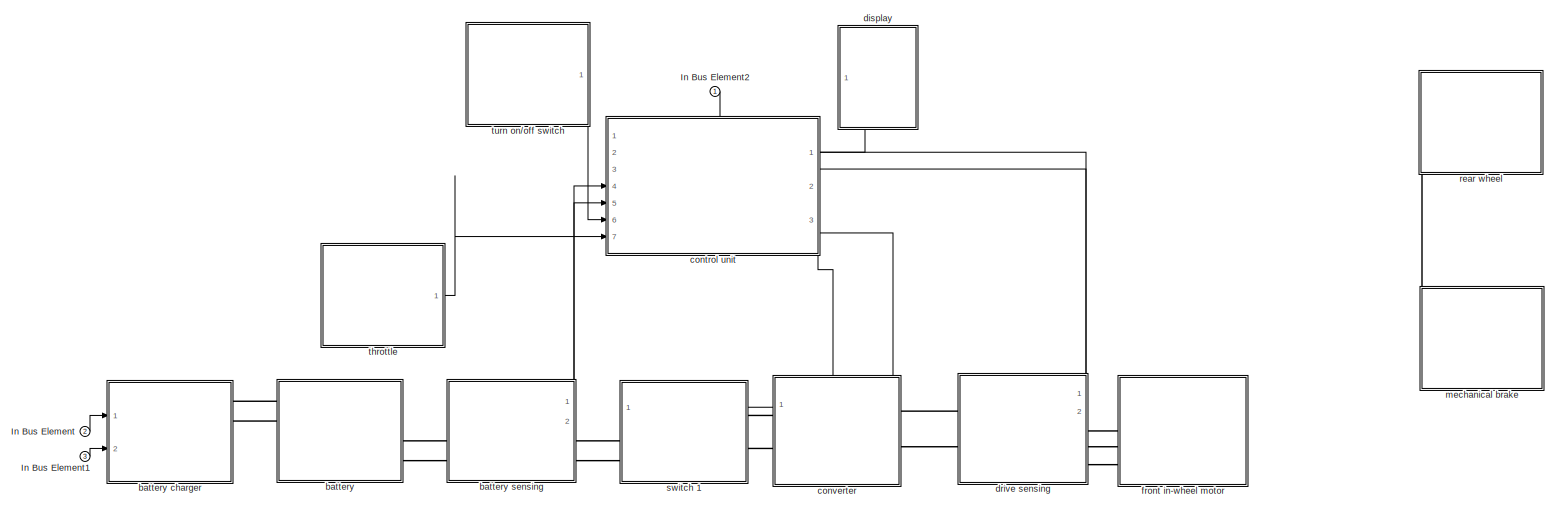
[diagram: root canvas - part 1/1, most of the canvas]
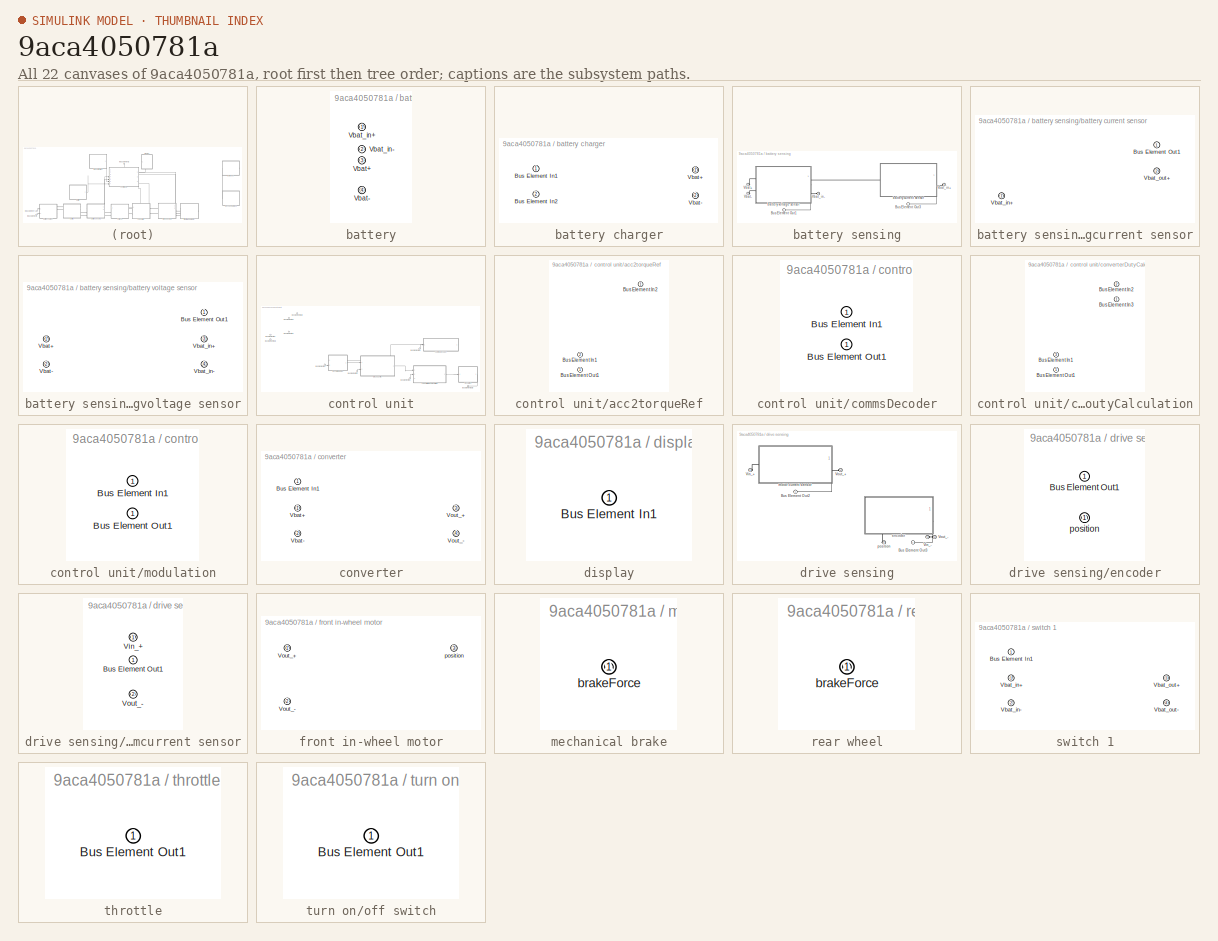
[diagram: thumbnail index - all 22 canvases of the model, root first then tree order]
MODEL slx_9aca4050781a
KIND model
CONFIG AbsTol = auto
CONFIG EnableMultiTasking = off
CONFIG FixedStep = auto
CONFIG MaxStep = auto
CONFIG MinStep = auto
CONFIG RelTol = 1e-3
CONFIG SampleTimeConstraint = Unconstrained
CONFIG SolverName = VariableStepAuto
CONFIG StartTime = 0.0
CONFIG StopTime = 10.0
BLOCK [Inport] In Bus Element
  Port = 2
BLOCK [Inport] In Bus Element1
  Port = 3
BLOCK [Inport] In Bus Element2
BLOCK [SubSystem] battery
  PortSchema = {"entries":[{"content":{"headerSize":26,"margin":15,"minimumSpacing":25,"sides":[{"content":{"connectorIds":["RConn1","RConn2"]},"type":"ConnectorPlacement.EquallySpacedRectSide","uuid":"ee500202-9322-4fb0-a7cb-dad4ec0e2ec3"},{"content":{"connectorIds":["RConn3","RConn4"],"side":"RIGHT"},"type":"ConnectorPlacement.EquallySpacedRectSide","uuid":"837fb5dd-499e-46ad-8a25-662d532e1a52"},{"content":{"c...<+455ch>
  Ports = [0, 0, 0, 0, 0, 0, 4]
  RequestExecContextInheritance = off
BLOCK [SubSystem] battery charger
  PortSchema = {"entries":[{"content":{"headerSize":26,"margin":15,"minimumSpacing":25,"sides":[{"content":{"connectorIds":["In1","In2"]},"type":"ConnectorPlacement.EquallySpacedRectSide","uuid":"77baa894-24de-420f-bb05-d29ca1eca7c3"},{"content":{"connectorIds":["RConn1","RConn2"],"side":"RIGHT"},"type":"ConnectorPlacement.EquallySpacedRectSide","uuid":"fcd1216d-879c-477b-b249-00119a9fcd22"},{"content":{"connect...<+305ch>
  Ports = [2, 0, 0, 0, 0, 0, 2]
  RequestExecContextInheritance = off
BLOCK [Inport] battery charger/Bus Element In1
BLOCK [Inport] battery charger/Bus Element In2
  Port = 2
BLOCK [PMIOPort] battery charger/Vbat+
  Side = Right
BLOCK [PMIOPort] battery charger/Vbat-
  Port = 2
  Side = Right
BLOCK [SubSystem] battery sensing
  PortSchema = {"entries":[{"content":{"headerSize":26,"margin":15,"minimumSpacing":25,"sides":[{"content":{"connectorIds":["LConn1","LConn2"]},"type":"ConnectorPlacement.EquallySpacedRectSide","uuid":"77baa894-24de-420f-bb05-d29ca1eca7c3"},{"content":{"connectorIds":["RConn1","RConn2"],"side":"RIGHT"},"type":"ConnectorPlacement.EquallySpacedRectSide","uuid":"fcd1216d-879c-477b-b249-00119a9fcd22"},{"content":{"c...<+468ch>
  Ports = [0, 2, 0, 0, 0, 2, 2]
  RequestExecContextInheritance = off
BLOCK [Outport] battery sensing/Bus Element Out1
  Port = 2
BLOCK [Outport] battery sensing/Bus Element Out3
BLOCK [PMIOPort] battery sensing/Vbat+
  Side = Left
BLOCK [PMIOPort] battery sensing/Vbat-
  Port = 2
  Side = Left
BLOCK [PMIOPort] battery sensing/Vbat_in+
  Port = 3
  Side = Right
BLOCK [PMIOPort] battery sensing/Vbat_in-
  Port = 4
  Side = Right
BLOCK [SubSystem] battery sensing/battery current sensor
  PortSchema = {"entries":[{"content":{"headerSize":26,"margin":15,"minimumSpacing":25,"sides":[{"content":{"connectorIds":["LConn1"]},"type":"ConnectorPlacement.EquallySpacedRectSide","uuid":"77baa894-24de-420f-bb05-d29ca1eca7c3"},{"content":{"connectorIds":["RConn1"],"side":"RIGHT"},"type":"ConnectorPlacement.EquallySpacedRectSide","uuid":"fcd1216d-879c-477b-b249-00119a9fcd22"},{"content":{"connectorIds":[],"s...<+443ch>
  Ports = [0, 1, 0, 0, 0, 1, 1]
  RequestExecContextInheritance = off
BLOCK [Outport] battery sensing/battery current sensor/Bus Element Out1
BLOCK [PMIOPort] battery sensing/battery current sensor/Vbat_in+
  Side = Left
BLOCK [PMIOPort] battery sensing/battery current sensor/Vbat_out+
  Port = 2
  Side = Right
BLOCK [SubSystem] battery sensing/battery voltage sensor
  PortSchema = {"entries":[{"content":{"headerSize":26,"margin":15,"minimumSpacing":25,"sides":[{"content":{"connectorIds":["LConn1","LConn2"]},"type":"ConnectorPlacement.EquallySpacedRectSide","uuid":"77baa894-24de-420f-bb05-d29ca1eca7c3"},{"content":{"connectorIds":["RConn1","RConn2"],"side":"RIGHT"},"type":"ConnectorPlacement.EquallySpacedRectSide","uuid":"fcd1216d-879c-477b-b249-00119a9fcd22"},{"content":{"c...<+461ch>
  Ports = [0, 1, 0, 0, 0, 2, 2]
  RequestExecContextInheritance = off
BLOCK [Outport] battery sensing/battery voltage sensor/Bus Element Out1
BLOCK [PMIOPort] battery sensing/battery voltage sensor/Vbat+
  Side = Left
BLOCK [PMIOPort] battery sensing/battery voltage sensor/Vbat-
  Port = 2
  Side = Left
BLOCK [PMIOPort] battery sensing/battery voltage sensor/Vbat_in+
  Port = 3
  Side = Right
BLOCK [PMIOPort] battery sensing/battery voltage sensor/Vbat_in-
  Port = 4
  Side = Right
BLOCK [PMIOPort] battery/Vbat+
  Port = 3
  Side = Right
BLOCK [PMIOPort] battery/Vbat-
  Port = 4
  Side = Right
BLOCK [PMIOPort] battery/Vbat_in+
  Side = Right
BLOCK [PMIOPort] battery/Vbat_in-
  Port = 2
  Side = Right
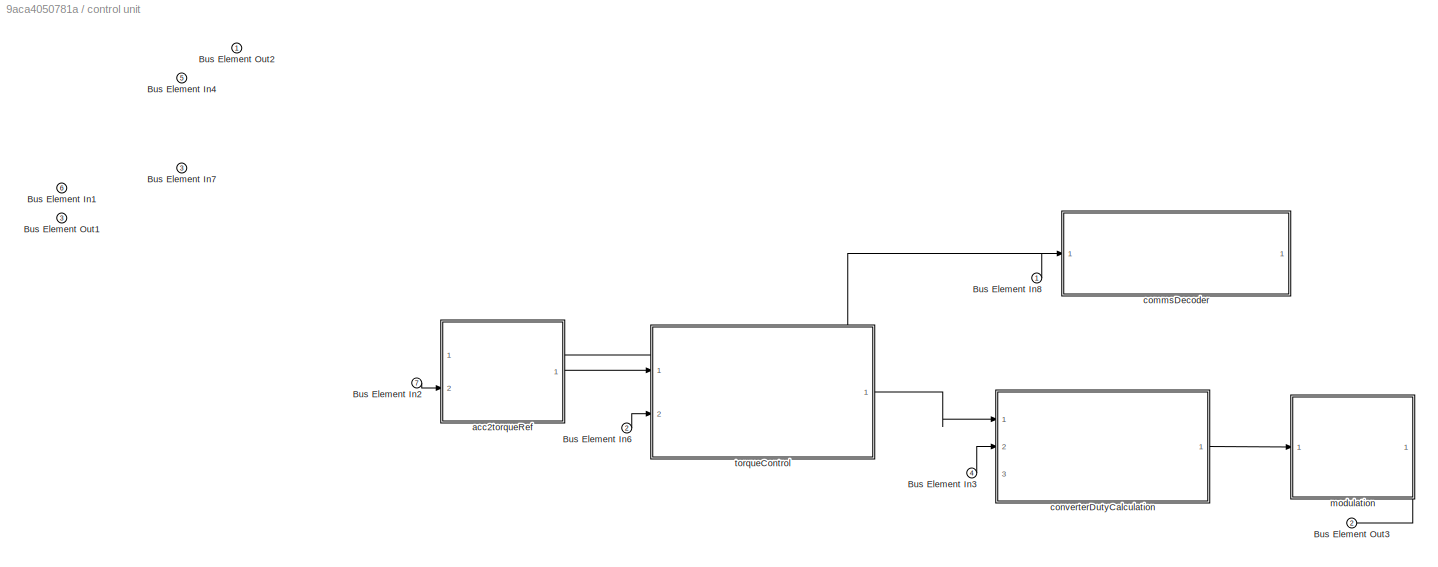
BLOCK [SubSystem] control unit
  PortSchema = {"entries":[{"content":{"headerSize":26,"margin":15,"minimumSpacing":25,"sides":[{"content":{"connectorIds":["In6","In7","In4","In5"]},"type":"ConnectorPlacement.EquallySpacedRectSide","uuid":"77baa894-24de-420f-bb05-d29ca1eca7c3"},{"content":{"connectorIds":["Out1","In2","In3"],"side":"RIGHT"},"type":"ConnectorPlacement.EquallySpacedRectSide","uuid":"fcd1216d-879c-477b-b249-00119a9fcd22"},{"conte...<+480ch>
  Ports = [7, 3]
  RequestExecContextInheritance = off
BLOCK [Inport] control unit/Bus Element In1
  Port = 6
BLOCK [Inport] control unit/Bus Element In2
  Port = 7
BLOCK [Inport] control unit/Bus Element In3
  Port = 4
BLOCK [Inport] control unit/Bus Element In4
  Port = 5
BLOCK [Inport] control unit/Bus Element In6
  Port = 2
BLOCK [Inport] control unit/Bus Element In7
  Port = 3
BLOCK [Inport] control unit/Bus Element In8
BLOCK [Outport] control unit/Bus Element Out1
  Port = 3
BLOCK [Outport] control unit/Bus Element Out2
BLOCK [Outport] control unit/Bus Element Out3
  Port = 2
BLOCK [SubSystem] control unit/acc2torqueRef
  PortSchema = {"entries":[{"content":{"headerSize":26,"margin":15,"minimumSpacing":25,"sides":[{"content":{"connectorIds":["In2"]},"type":"ConnectorPlacement.EquallySpacedRectSide","uuid":"c417387f-860e-41c8-9911-3c50efe17f0f"},{"content":{"connectorIds":["In1","Out1"],"side":"RIGHT"},"type":"ConnectorPlacement.EquallySpacedRectSide","uuid":"91196307-25cf-4e7f-8b62-2e4af4ce1698"},{"content":{"connectorIds":[],"...<+438ch>
  Ports = [2, 1]
  RequestExecContextInheritance = off
BLOCK [Inport] control unit/acc2torqueRef/Bus Element In1
  Port = 2
BLOCK [Inport] control unit/acc2torqueRef/Bus Element In2
BLOCK [Outport] control unit/acc2torqueRef/Bus Element Out1
BLOCK [SubSystem] control unit/commsDecoder
  PortSchema = {"entries":[{"content":{"headerSize":26,"margin":15,"minimumSpacing":25,"sides":[{"content":{"connectorIds":["Out1","In1"]},"type":"ConnectorPlacement.EquallySpacedRectSide","uuid":"77baa894-24de-420f-bb05-d29ca1eca7c3"},{"content":{"connectorIds":[],"side":"RIGHT"},"type":"ConnectorPlacement.EquallySpacedRectSide","uuid":"fcd1216d-879c-477b-b249-00119a9fcd22"},{"content":{"connectorIds":[],"side"...<+289ch>
  Ports = [1, 1]
  RequestExecContextInheritance = off
BLOCK [Inport] control unit/commsDecoder/Bus Element In1
BLOCK [Outport] control unit/commsDecoder/Bus Element Out1
BLOCK [SubSystem] control unit/converterDutyCalculation
  PortSchema = {"entries":[{"content":{"headerSize":26,"margin":15,"minimumSpacing":25,"sides":[{"content":{"connectorIds":["In1","In2"]},"type":"ConnectorPlacement.EquallySpacedRectSide","uuid":"c417387f-860e-41c8-9911-3c50efe17f0f"},{"content":{"connectorIds":["Out1"],"side":"RIGHT"},"type":"ConnectorPlacement.EquallySpacedRectSide","uuid":"91196307-25cf-4e7f-8b62-2e4af4ce1698"},{"content":{"connectorIds":["In...<+443ch>
  Ports = [3, 1]
  RequestExecContextInheritance = off
BLOCK [Inport] control unit/converterDutyCalculation/Bus Element In1
  Port = 3
BLOCK [Inport] control unit/converterDutyCalculation/Bus Element In2
  Port = 2
BLOCK [Inport] control unit/converterDutyCalculation/Bus Element In3
BLOCK [Outport] control unit/converterDutyCalculation/Bus Element Out1
BLOCK [SubSystem] control unit/modulation
  PortSchema = {"entries":[{"content":{"headerSize":26,"margin":15,"minimumSpacing":25,"sides":[{"content":{"connectorIds":["In1"]},"type":"ConnectorPlacement.EquallySpacedRectSide","uuid":"c417387f-860e-41c8-9911-3c50efe17f0f"},{"content":{"connectorIds":[],"side":"RIGHT"},"type":"ConnectorPlacement.EquallySpacedRectSide","uuid":"91196307-25cf-4e7f-8b62-2e4af4ce1698"},{"content":{"connectorIds":[],"side":"TOP"}...<+432ch>
  Ports = [1, 1]
  RequestExecContextInheritance = off
BLOCK [Inport] control unit/modulation/Bus Element In1
BLOCK [Outport] control unit/modulation/Bus Element Out1
BLOCK [ModelReference] control unit/torqueControl
  ModelNameDialog = torqueControl
  ModelReferenceVersion = 1.4
  PortSchema = {"entries":[{"content":{"headerSize":38,"margin":15,"minimumSpacing":25,"sides":[{"content":{"connectorIds":["In1","In2"]},"type":"ConnectorPlacement.EquallySpacedRectSide","uuid":"c417387f-860e-41c8-9911-3c50efe17f0f"},{"content":{"connectorIds":["Out1"],"side":"RIGHT"},"type":"ConnectorPlacement.EquallySpacedRectSide","uuid":"91196307-25cf-4e7f-8b62-2e4af4ce1698"},{"content":{"connectorIds":[],"...<+438ch>
  Ports = [2, 1]
BLOCK [SubSystem] converter
  PortSchema = {"entries":[{"content":{"headerSize":26,"margin":15,"minimumSpacing":25,"sides":[{"content":{"connectorIds":["LConn1","LConn2"]},"type":"ConnectorPlacement.EquallySpacedRectSide","uuid":"77baa894-24de-420f-bb05-d29ca1eca7c3"},{"content":{"connectorIds":["RConn1","RConn2"],"side":"RIGHT"},"type":"ConnectorPlacement.EquallySpacedRectSide","uuid":"fcd1216d-879c-477b-b249-00119a9fcd22"},{"content":{"c...<+316ch>
  Ports = [1, 0, 0, 0, 0, 2, 2]
  RequestExecContextInheritance = off
BLOCK [Inport] converter/Bus Element In1
BLOCK [PMIOPort] converter/Vbat+
  Side = Left
BLOCK [PMIOPort] converter/Vbat-
  Port = 2
  Side = Left
BLOCK [PMIOPort] converter/Vout_+
  Port = 3
  Side = Right
BLOCK [PMIOPort] converter/Vout_-
  Port = 4
  Side = Right
BLOCK [SubSystem] display
  PortSchema = {"entries":[{"content":{"headerSize":26,"margin":15,"minimumSpacing":25,"sides":[{"content":{"connectorIds":[]},"type":"ConnectorPlacement.EquallySpacedRectSide","uuid":"77baa894-24de-420f-bb05-d29ca1eca7c3"},{"content":{"connectorIds":[],"side":"RIGHT"},"type":"ConnectorPlacement.EquallySpacedRectSide","uuid":"fcd1216d-879c-477b-b249-00119a9fcd22"},{"content":{"connectorIds":[],"side":"TOP"},"typ...<+426ch>
  Ports = [1]
  RequestExecContextInheritance = off
BLOCK [Inport] display/Bus Element In1
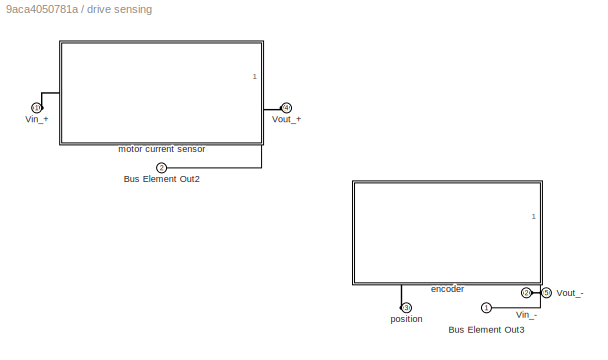
BLOCK [SubSystem] drive sensing
  PortSchema = {"entries":[{"content":{"headerSize":26,"margin":15,"minimumSpacing":25,"sides":[{"content":{"connectorIds":["LConn1","LConn2"]},"type":"ConnectorPlacement.EquallySpacedRectSide","uuid":"77baa894-24de-420f-bb05-d29ca1eca7c3"},{"content":{"connectorIds":["RConn2","RConn3"],"side":"RIGHT"},"type":"ConnectorPlacement.EquallySpacedRectSide","uuid":"fcd1216d-879c-477b-b249-00119a9fcd22"},{"content":{"c...<+476ch>
  Ports = [0, 2, 0, 0, 0, 2, 3]
  RequestExecContextInheritance = off
BLOCK [Outport] drive sensing/Bus Element Out2
  Port = 2
BLOCK [Outport] drive sensing/Bus Element Out3
BLOCK [PMIOPort] drive sensing/Vin_+
  Side = Left
BLOCK [PMIOPort] drive sensing/Vin_-
  Port = 2
  Side = Left
BLOCK [PMIOPort] drive sensing/Vout_+
  Port = 4
  Side = Right
BLOCK [PMIOPort] drive sensing/Vout_-
  Port = 5
  Side = Right
BLOCK [SubSystem] drive sensing/encoder
  PortSchema = {"entries":[{"content":{"headerSize":26,"margin":15,"minimumSpacing":25,"sides":[{"content":{"connectorIds":[]},"type":"ConnectorPlacement.EquallySpacedRectSide","uuid":"77baa894-24de-420f-bb05-d29ca1eca7c3"},{"content":{"connectorIds":[],"side":"RIGHT"},"type":"ConnectorPlacement.EquallySpacedRectSide","uuid":"fcd1216d-879c-477b-b249-00119a9fcd22"},{"content":{"connectorIds":[],"side":"TOP"},"typ...<+436ch>
  Ports = [0, 1, 0, 0, 0, 0, 1]
  RequestExecContextInheritance = off
BLOCK [Outport] drive sensing/encoder/Bus Element Out1
BLOCK [PMIOPort] drive sensing/encoder/position
  Side = Right
BLOCK [SubSystem] drive sensing/motor current sensor
  PortSchema = {"entries":[{"content":{"headerSize":26,"margin":15,"minimumSpacing":25,"sides":[{"content":{"connectorIds":["LConn1"]},"type":"ConnectorPlacement.EquallySpacedRectSide","uuid":"77baa894-24de-420f-bb05-d29ca1eca7c3"},{"content":{"connectorIds":["RConn1"],"side":"RIGHT"},"type":"ConnectorPlacement.EquallySpacedRectSide","uuid":"fcd1216d-879c-477b-b249-00119a9fcd22"},{"content":{"connectorIds":[],"s...<+443ch>
  Ports = [0, 1, 0, 0, 0, 1, 1]
  RequestExecContextInheritance = off
BLOCK [Outport] drive sensing/motor current sensor/Bus Element Out1
BLOCK [PMIOPort] drive sensing/motor current sensor/Vin_+
  Side = Left
BLOCK [PMIOPort] drive sensing/motor current sensor/Vout_-
  Port = 2
  Side = Right
BLOCK [PMIOPort] drive sensing/position
  Port = 3
  Side = Right
BLOCK [SubSystem] front in-wheel motor
  PortSchema = {"entries":[{"content":{"headerSize":26,"margin":15,"minimumSpacing":25,"sides":[{"content":{"connectorIds":["LConn1","LConn2"]},"type":"ConnectorPlacement.EquallySpacedRectSide","uuid":"77baa894-24de-420f-bb05-d29ca1eca7c3"},{"content":{"connectorIds":[],"side":"RIGHT"},"type":"ConnectorPlacement.EquallySpacedRectSide","uuid":"fcd1216d-879c-477b-b249-00119a9fcd22"},{"content":{"connectorIds":[],"...<+446ch>
  Ports = [0, 0, 0, 0, 0, 2, 1]
  RequestExecContextInheritance = off
BLOCK [PMIOPort] front in-wheel motor/Vout_+
  Side = Left
BLOCK [PMIOPort] front in-wheel motor/Vout_-
  Port = 2
  Side = Left
BLOCK [PMIOPort] front in-wheel motor/position
  Port = 3
  Side = Right
BLOCK [SubSystem] mechanical brake
  PortSchema = {"entries":[{"content":{"headerSize":26,"margin":15,"minimumSpacing":25,"sides":[{"content":{"connectorIds":[]},"type":"ConnectorPlacement.EquallySpacedRectSide","uuid":"77baa894-24de-420f-bb05-d29ca1eca7c3"},{"content":{"connectorIds":[],"side":"RIGHT"},"type":"ConnectorPlacement.EquallySpacedRectSide","uuid":"fcd1216d-879c-477b-b249-00119a9fcd22"},{"content":{"connectorIds":["LConn1"],"side":"TO...<+285ch>
  Ports = [0, 0, 0, 0, 0, 1]
  RequestExecContextInheritance = off
BLOCK [PMIOPort] mechanical brake/brakeForce
  Side = Left
BLOCK [SubSystem] rear wheel
  PortSchema = {"entries":[{"content":{"headerSize":26,"margin":15,"minimumSpacing":25,"sides":[{"content":{"connectorIds":[]},"type":"ConnectorPlacement.EquallySpacedRectSide","uuid":"77baa894-24de-420f-bb05-d29ca1eca7c3"},{"content":{"connectorIds":[],"side":"RIGHT"},"type":"ConnectorPlacement.EquallySpacedRectSide","uuid":"fcd1216d-879c-477b-b249-00119a9fcd22"},{"content":{"connectorIds":[],"side":"TOP"},"typ...<+429ch>
  Ports = [0, 0, 0, 0, 0, 0, 1]
  RequestExecContextInheritance = off
BLOCK [PMIOPort] rear wheel/brakeForce
  Side = Right
BLOCK [SubSystem] switch 1
  PortSchema = {"entries":[{"content":{"headerSize":26,"margin":15,"minimumSpacing":25,"sides":[{"content":{"connectorIds":["LConn1","LConn2"]},"type":"ConnectorPlacement.EquallySpacedRectSide","uuid":"77baa894-24de-420f-bb05-d29ca1eca7c3"},{"content":{"connectorIds":["RConn1","RConn2"],"side":"RIGHT"},"type":"ConnectorPlacement.EquallySpacedRectSide","uuid":"fcd1216d-879c-477b-b249-00119a9fcd22"},{"content":{"c...<+316ch>
  Ports = [1, 0, 0, 0, 0, 2, 2]
  RequestExecContextInheritance = off
BLOCK [Inport] switch 1/Bus Element In1
BLOCK [PMIOPort] switch 1/Vbat_in+
  Side = Left
BLOCK [PMIOPort] switch 1/Vbat_in-
  Port = 2
  Side = Left
BLOCK [PMIOPort] switch 1/Vbat_out+
  Port = 3
  Side = Right
BLOCK [PMIOPort] switch 1/Vbat_out-
  Port = 4
  Side = Right
BLOCK [SubSystem] throttle
  PortSchema = {"entries":[{"content":{"headerSize":26,"margin":15,"minimumSpacing":25,"sides":[{"content":{"connectorIds":[]},"type":"ConnectorPlacement.EquallySpacedRectSide","uuid":"77baa894-24de-420f-bb05-d29ca1eca7c3"},{"content":{"connectorIds":["Out1"],"side":"RIGHT"},"type":"ConnectorPlacement.EquallySpacedRectSide","uuid":"fcd1216d-879c-477b-b249-00119a9fcd22"},{"content":{"connectorIds":[],"side":"TOP"...<+283ch>
  Ports = [0, 1]
  RequestExecContextInheritance = off
BLOCK [Outport] throttle/Bus Element Out1
BLOCK [SubSystem] turn on//off switch
  PortSchema = {"entries":[{"content":{"headerSize":26,"margin":15,"minimumSpacing":25,"sides":[{"content":{"connectorIds":[]},"type":"ConnectorPlacement.EquallySpacedRectSide","uuid":"77baa894-24de-420f-bb05-d29ca1eca7c3"},{"content":{"connectorIds":[],"side":"RIGHT"},"type":"ConnectorPlacement.EquallySpacedRectSide","uuid":"fcd1216d-879c-477b-b249-00119a9fcd22"},{"content":{"connectorIds":[],"side":"TOP"},"typ...<+427ch>
  Ports = [0, 1]
  RequestExecContextInheritance = off
BLOCK [Outport] turn on//off switch/Bus Element Out1
LINE In Bus Element1:1 -> battery charger:2
LINE In Bus Element2:1 -> control unit:1
LINE In Bus Element:1 -> battery charger:1
LINE battery sensing/battery current sensor:1 -> battery sensing/Bus Element Out3:1
LINE battery sensing/battery voltage sensor:1 -> battery sensing/Bus Element Out1:1
LINE battery sensing:1 -> control unit:5
LINE battery sensing:2 -> control unit:4
LINE control unit/Bus Element In2:1 -> control unit/acc2torqueRef:2
LINE control unit/Bus Element In3:1 -> control unit/converterDutyCalculation:2
LINE control unit/Bus Element In6:1 -> control unit/torqueControl:2
LINE control unit/Bus Element In8:1 -> control unit/commsDecoder:1
LINE control unit/acc2torqueRef:1 -> control unit/torqueControl:1
LINE control unit/commsDecoder:1 -> control unit/acc2torqueRef:1
LINE control unit/converterDutyCalculation:1 -> control unit/modulation:1
LINE control unit/modulation:1 -> control unit/Bus Element Out3:1
LINE control unit/torqueControl:1 -> control unit/converterDutyCalculation:1
LINE control unit:1 -> display:1
LINE control unit:2 -> converter:1
LINE control unit:3 -> switch 1:1
LINE drive sensing/encoder:1 -> drive sensing/Bus Element Out3:1
LINE drive sensing/motor current sensor:1 -> drive sensing/Bus Element Out2:1
LINE drive sensing:1 -> control unit:3
LINE drive sensing:2 -> control unit:2
LINE throttle:1 -> control unit:7
LINE turn on//off switch:1 -> control unit:6
PLINE battery charger:RConn1 -- battery:RConn1
PLINE battery charger:RConn2 -- battery:RConn2
PLINE battery sensing/Vbat+:RConn1 -- battery sensing/battery voltage sensor:LConn1
PLINE battery sensing/Vbat-:RConn1 -- battery sensing/battery voltage sensor:LConn2
PLINE battery sensing/Vbat_in+:RConn1 -- battery sensing/battery current sensor:RConn1
PLINE battery sensing/Vbat_in-:RConn1 -- battery sensing/battery voltage sensor:RConn2
PLINE battery sensing/battery current sensor:LConn1 -- battery sensing/battery voltage sensor:RConn1
PLINE battery sensing:LConn1 -- battery:RConn3
PLINE battery sensing:LConn2 -- battery:RConn4
PLINE battery sensing:RConn1 -- switch 1:LConn1
PLINE battery sensing:RConn2 -- switch 1:LConn2
PLINE converter:LConn1 -- switch 1:RConn1
PLINE converter:LConn2 -- switch 1:RConn2
PLINE converter:RConn1 -- drive sensing:LConn1
PLINE converter:RConn2 -- drive sensing:LConn2
PLINE drive sensing/Vin_+:RConn1 -- drive sensing/motor current sensor:LConn1
PLINE drive sensing/Vin_-:RConn1 -- drive sensing/Vout_-:RConn1
PLINE drive sensing/Vout_+:RConn1 -- drive sensing/motor current sensor:RConn1
PLINE drive sensing/encoder:RConn1 -- drive sensing/position:RConn1
PLINE drive sensing:RConn1 -- front in-wheel motor:RConn1
PLINE drive sensing:RConn2 -- front in-wheel motor:LConn1
PLINE drive sensing:RConn3 -- front in-wheel motor:LConn2
PLINE mechanical brake:LConn1 -- rear wheel:RConn1
